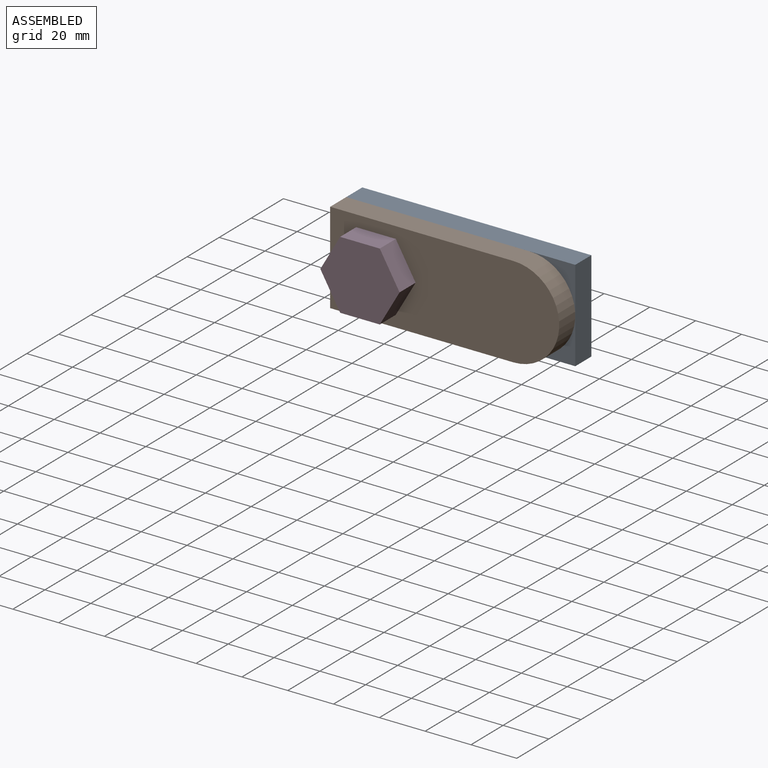
[diagram: assembled view]
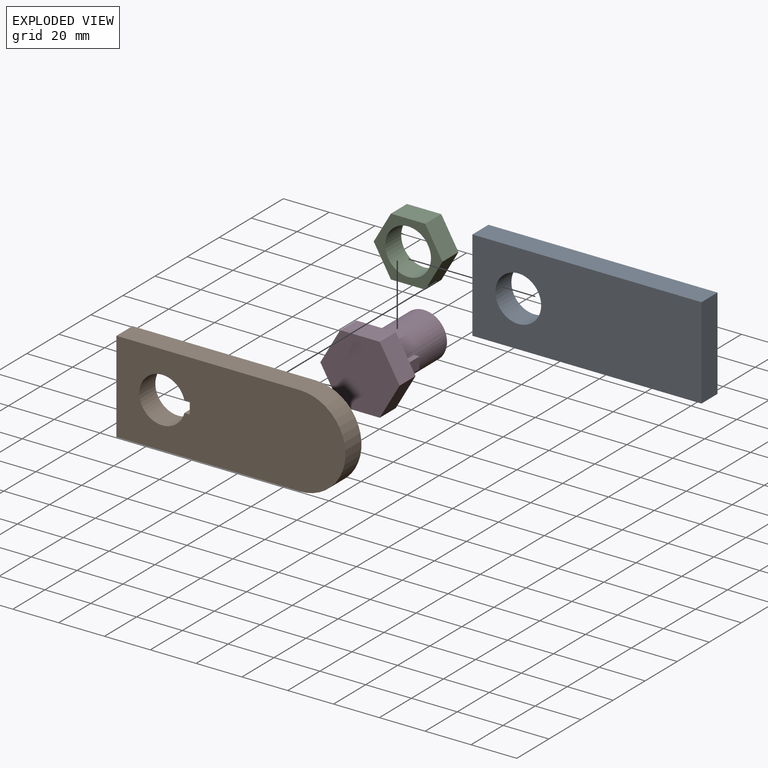
[diagram: exploded view]
GUIDED TOUR — MATED ASSEMBLY (Onshape document ece6e4e9f2e5bcd95f01d395, AutoMate assembly ece6e4e9f2e5bcd95f01d395_c71dc34602452f2787e5e2ba_51448a949453e09c9111e86c_default)

This assembly has 4 components, labeled P0..P3 below (a component is one placed occurrence of a part; the same part can appear more than once), held together by 3 mates. A mate is a constraint between two components; its type names the relative motion it leaves free:
  FASTENED — locks the two components together rigidly (no relative motion),
  REVOLUTE — leaves rotation about the listed axis free (a hinge).
Axis/direction vectors are unit vectors and 'through' points are millimeter coordinates, both in the assembly's world frame.

MATES
  1. FASTENED "Fastened 1": P3 <-> P1, direction (1.000, 0.000, 0.000) through (-59.93, -40.11, -23.84) mm
  2. REVOLUTE "Revolute 2": P0 <-> P1, axis (0.000, -1.000, 0.000) through (-71.93, -35.11, -23.84) mm
  3. REVOLUTE "Revolute 1": P0 <-> P2, axis (0.000, 1.000, 0.000) through (-71.93, -25.11, -23.84) mm

ASSEMBLY ORDER
  1. P2 — the base component [order verified]
  2. P3 [order verified]
  3. P1 [order verified]
  4. P0 [order verified]
Order-tag legend:
  [order verified] — this step's position reverses a verified removal order: the component was checked to insert without passing through the ones already placed.

Of the 4 components, 4 carry the full construction recipe — the FeatureScript program that regenerates the part's solid from scratch; the rest are supplied as boundary geometry only.
Each toured component is shown spotlighted twice — in the assembled view, then in the exploded view, where a leader line traces a displaced component back to its assembled socket (saturated green if recipe-attached, orange if geometry-only; every other component desaturated gray) — followed by its recipe or geometry summary and the mates that hold it.
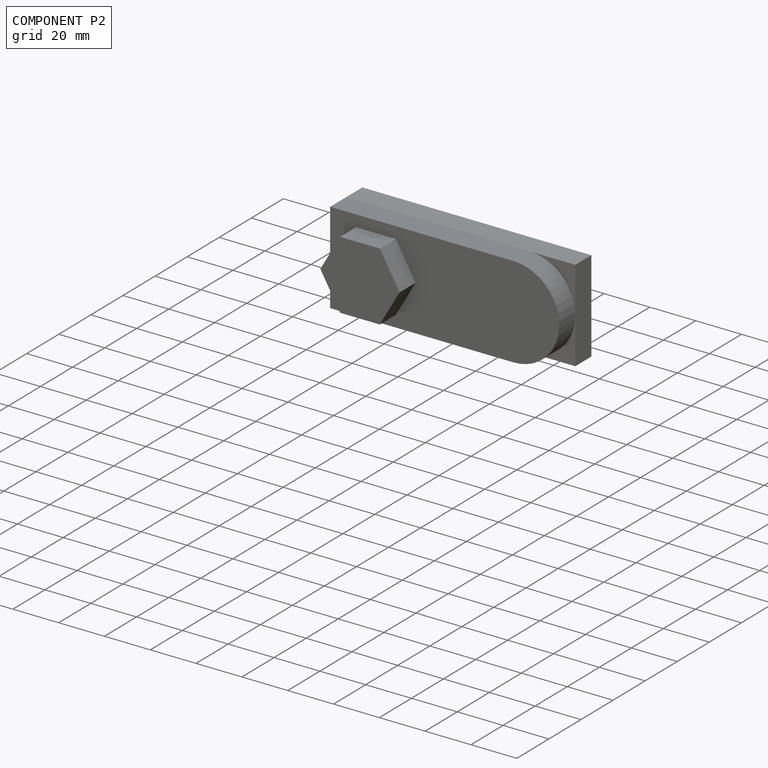
[diagram: component P2 — assembled]
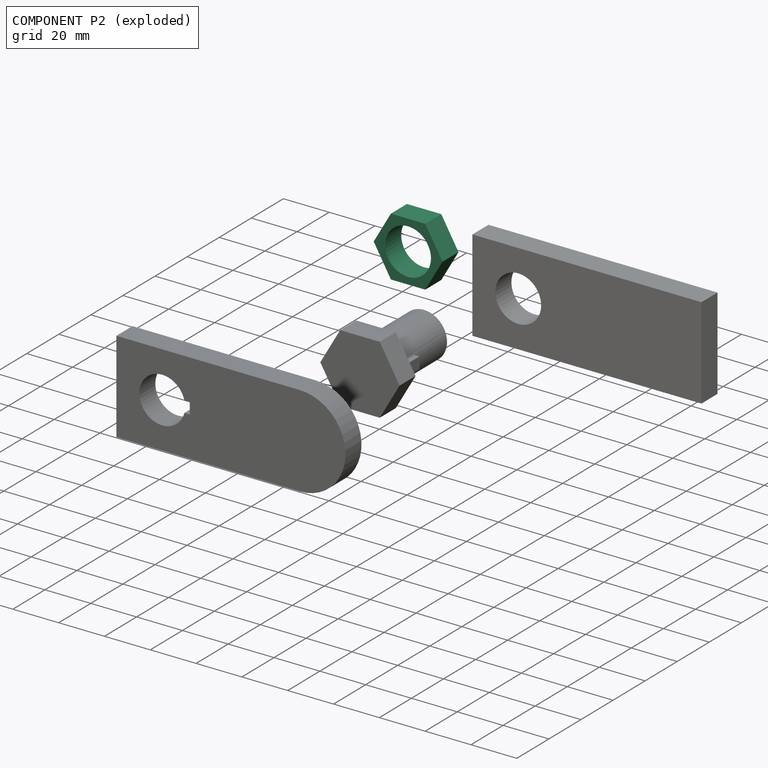
[diagram: component P2 — exploded]
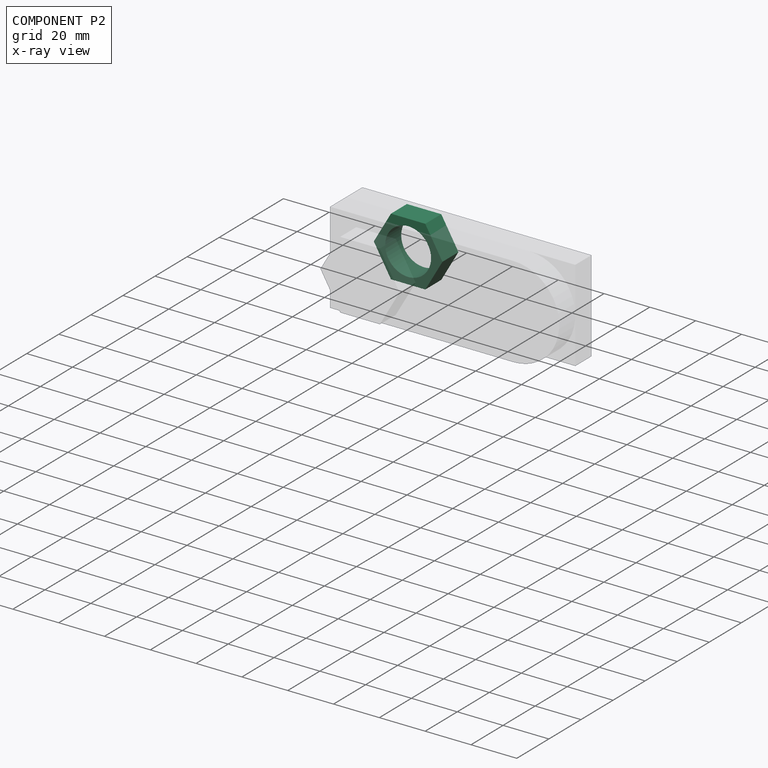
[diagram: component P2 — x-ray view]
COMPONENT P2 — recipe-attached (CADFS 00669568, mesh-verified: the recipe's output STEP matches this component's geometry to below the mesh-comparison resolution (tessellation chordal tolerance ~0.0614 mm)).
Held by: REVOLUTE mate "Revolute 1" to P0.
Construction recipe (FeatureScript — the CAD program that rebuilds this solid; sketch coordinates are in the units given by the * unit suffixes, e.g. mm):

FeatureScript 1511;
import(path : "onshape/std/geometry.fs", version : "1511.0");
import(path : "onshape/std/common.fs", version : "1511.0");
const mm = millimeter;
const VERTEX = EntityType.VERTEX;
const EDGE = EntityType.EDGE;
const FACE = EntityType.FACE;
const BODY = EntityType.BODY;
function v(x, y){return vector(x, y);}
function OD(order){return orderDisambiguation(order);}
function OSD(set){return originalSetDisambiguation(set);}
function TD(topology){return topologyDisambiguation(topology);}
function TDD(query){return trueDependencyDisambiguation(query);}
function sQuery(a, b, c) {return sketchEntityQuery(a, b, c);}

annotation { "Feature Type Name" : "Feature", "Feature Type Description" : "" }
export const myFeature = defineFeature(function(context is Context, id is Id, definition is map)
    precondition{}
    {
        {
            var Q0;
            Q0=qCreatedBy(makeId("Front.planeOp"),FACE);
            var sketch = newSketch(context, id + "F0", { "sketchPlane" : qUnion([Q0])});
            skCircle(sketch, "E0.cCircle", {"center": v(-147.43, 0) * mm, "radius": 13 * mm, "construction": true});
            skLineSegment(sketch, "E0.0", {"start": v(-139.93, -13) * mm, "end": v(-154.93, -13) * mm});
            skLineSegment(sketch, "E0.1", {"start": v(-154.93, -13) * mm, "end": v(-162.43, 0) * mm});
            skLineSegment(sketch, "E0.2", {"start": v(-162.43, 0) * mm, "end": v(-154.93, 13) * mm});
            skLineSegment(sketch, "E0.3", {"start": v(-154.93, 13) * mm, "end": v(-139.93, 13) * mm});
            skLineSegment(sketch, "E0.4", {"start": v(-139.93, 13) * mm, "end": v(-132.43, 0) * mm});
            skLineSegment(sketch, "E0.5", {"start": v(-132.43, 0) * mm, "end": v(-139.93, -13) * mm});
            skPoint(sketch, "E0.0.midPoint", {"position": v(-147.43, -13) * mm});
            skCircle(sketch, "E1", {"center": v(-147.43, 0) * mm, "radius": 10 * mm});
            skCircle(sketch, "E2.cCircle", {"center": v(-86.74, 3.46) * mm, "radius": 13 * mm, "construction": true});
            skLineSegment(sketch, "E2.0", {"start": v(-79.24, -9.53) * mm, "end": v(-94.24, -9.53) * mm});
            skLineSegment(sketch, "E2.1", {"start": v(-94.24, -9.53) * mm, "end": v(-101.74, 3.46) * mm});
            skLineSegment(sketch, "E2.2", {"start": v(-101.74, 3.46) * mm, "end": v(-94.24, 16.45) * mm});
            skLineSegment(sketch, "E2.3", {"start": v(-94.24, 16.45) * mm, "end": v(-79.24, 16.45) * mm});
            skLineSegment(sketch, "E2.4", {"start": v(-79.24, 16.45) * mm, "end": v(-71.74, 3.46) * mm});
            skLineSegment(sketch, "E2.5", {"start": v(-71.74, 3.46) * mm, "end": v(-79.24, -9.53) * mm});
            skPoint(sketch, "E2.0.midPoint", {"position": v(-86.74, -9.53) * mm});
            skCircle(sketch, "E3", {"center": v(-86.74, 3.46) * mm, "radius": 10 * mm});
            skSolve(sketch);
        }
        {
            var Q0;
            Q0=makeQuery(id+"F0.imprint","IMPRINT",FACE,{"disambiguationData":[TD([[makeQuery(id+"F0.imprint","IMPRINT",EDGE,{"derivedFrom":sQuery(id+"F0.wireOp",EDGE,"E0.0")}),-1.0]])]});
            extrude(context, id + "F1", {"entities" : qUnion([Q0]), "depth" : 10 * mm, "offsetDistance" : 25 * mm});
        }
    });
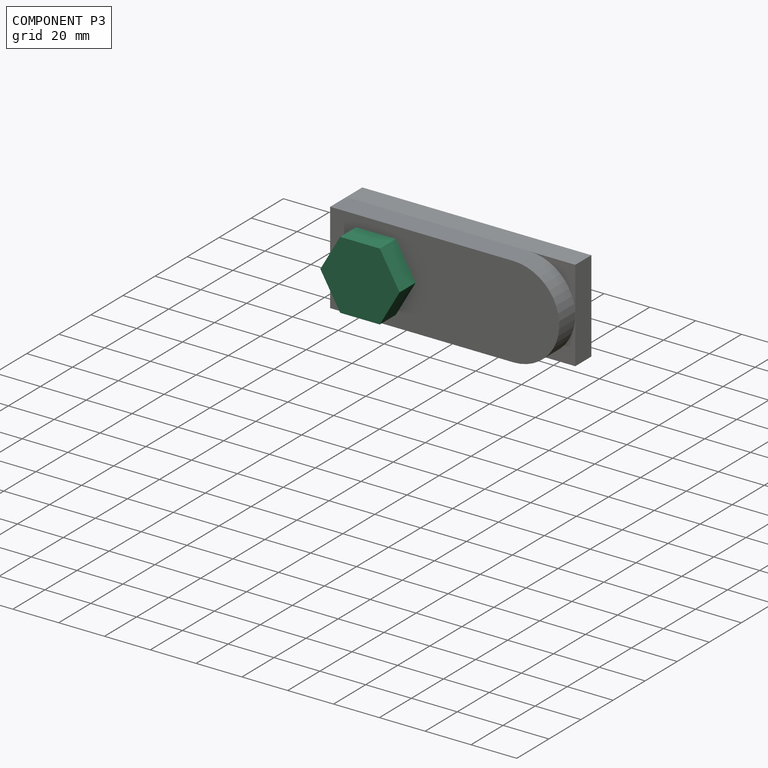
[diagram: component P3 — assembled]
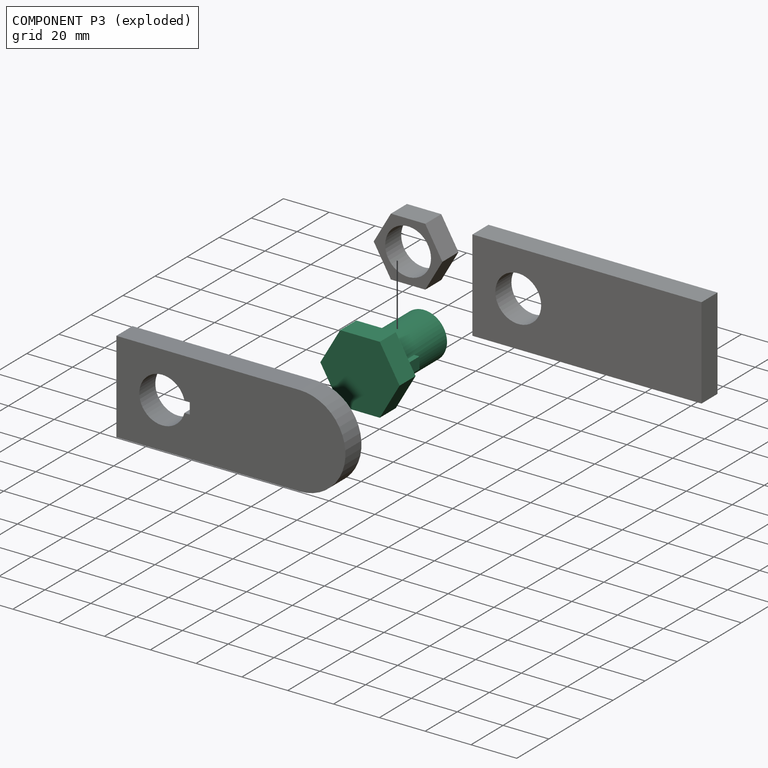
[diagram: component P3 — exploded]
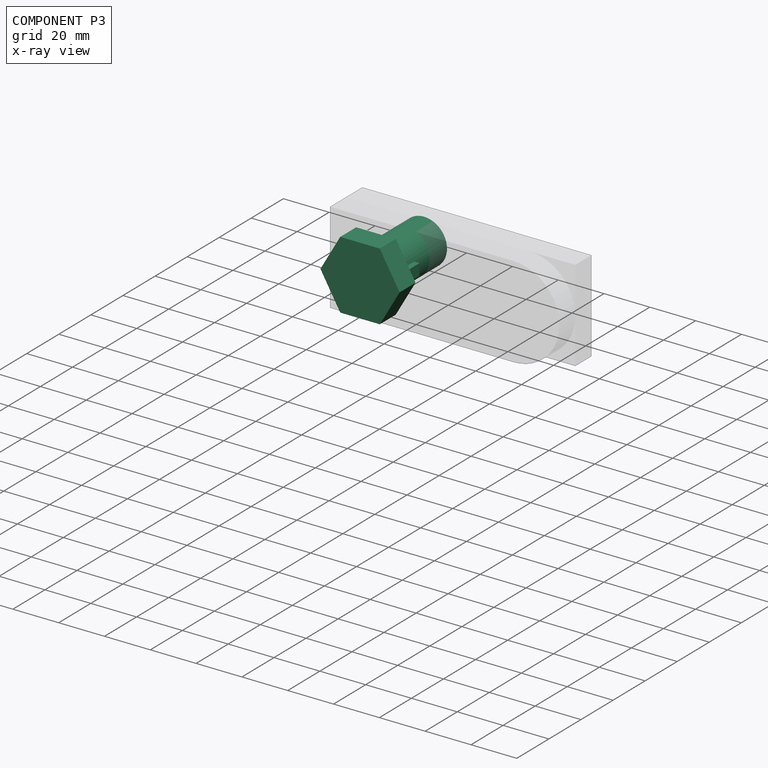
[diagram: component P3 — x-ray view]
COMPONENT P3 — recipe-attached (CADFS 00669569, mesh-verified: the recipe's output STEP matches this component's geometry to below the mesh-comparison resolution (tessellation chordal tolerance ~0.0912 mm)).
Held by: FASTENED mate "Fastened 1" to P1.
Construction recipe (FeatureScript — the CAD program that rebuilds this solid; sketch coordinates are in the units given by the * unit suffixes, e.g. mm):

FeatureScript 1511;
import(path : "onshape/std/geometry.fs", version : "1511.0");
import(path : "onshape/std/common.fs", version : "1511.0");
const mm = millimeter;
const VERTEX = EntityType.VERTEX;
const EDGE = EntityType.EDGE;
const FACE = EntityType.FACE;
const BODY = EntityType.BODY;
function v(x, y){return vector(x, y);}
function OD(order){return orderDisambiguation(order);}
function OSD(set){return originalSetDisambiguation(set);}
function TD(topology){return topologyDisambiguation(topology);}
function TDD(query){return trueDependencyDisambiguation(query);}
function sQuery(a, b, c) {return sketchEntityQuery(a, b, c);}

annotation { "Feature Type Name" : "Feature", "Feature Type Description" : "" }
export const myFeature = defineFeature(function(context is Context, id is Id, definition is map)
    precondition{}
    {
        {
            var Q0;
            Q0=qCreatedBy(makeId("Front.planeOp"),FACE);
            var sketch = newSketch(context, id + "F0", { "sketchPlane" : qUnion([Q0])});
            skCircle(sketch, "E0.cCircle", {"center": v(-165.47, 0) * mm, "radius": 14.98 * mm, "construction": true});
            skLineSegment(sketch, "E0.0", {"start": v(-156.82, -14.98) * mm, "end": v(-174.11, -14.98) * mm});
            skLineSegment(sketch, "E0.1", {"start": v(-174.11, -14.98) * mm, "end": v(-182.76, 0) * mm});
            skLineSegment(sketch, "E0.2", {"start": v(-182.76, 0) * mm, "end": v(-174.11, 14.98) * mm});
            skLineSegment(sketch, "E0.3", {"start": v(-174.11, 14.98) * mm, "end": v(-156.82, 14.98) * mm});
            skLineSegment(sketch, "E0.4", {"start": v(-156.82, 14.98) * mm, "end": v(-148.17, 0) * mm});
            skLineSegment(sketch, "E0.5", {"start": v(-148.17, 0) * mm, "end": v(-156.82, -14.98) * mm});
            skPoint(sketch, "E0.0.midPoint", {"position": v(-165.47, -14.98) * mm});
            skCircle(sketch, "E1", {"center": v(-165.47, 0) * mm, "radius": 10 * mm});
            skLineSegment(sketch, "E2.bottom", {"start": v(-153.47, -2.5) * mm, "end": v(-155.78, -2.5) * mm});
            skLineSegment(sketch, "E2.top", {"start": v(-153.47, 2.5) * mm, "end": v(-155.78, 2.5) * mm});
            skLineSegment(sketch, "E2.left", {"start": v(-153.47, -2.5) * mm, "end": v(-153.47, 2.5) * mm});
            skPoint(sketch, "E2.middle", {"position": v(-155.47, 0) * mm});
            skPoint(sketch, "E3.orphan", {"position": v(-157.47, 2.5) * mm});
            skPoint(sketch, "E4.orphan", {"position": v(-157.47, -2.5) * mm});
            skSolve(sketch);
        }
        {
            var Q0;
            {var subQ0=sQuery(id+"F0.wireOp",EDGE,"E1");var subQ1=makeQuery(id+"F0.imprint","INTERSECT",VERTEX,{"derivedFrom":[subQ0,sQuery(id+"F0.wireOp",EDGE,"E2.bottom")]});Q0=makeQuery(id+"F0.imprint","IMPRINT",FACE,{"disambiguationData":[TD([[makeQuery(id+"F0.imprint","IMPRINT",EDGE,{"disambiguationData":[TD([[subQ1,1.0]])],"derivedFrom":subQ0}),1.0]])]});}
            extrude(context, id + "F1", {"entities" : qUnion([Q0]), "depth" : 30 * mm, "offsetDistance" : 25 * mm});
        }
        {
            var Q0;
            {var subQ0=sQuery(id+"F0.wireOp",EDGE,"E2.bottom");Q0=makeQuery(id+"F0.imprint","IMPRINT",FACE,{"disambiguationData":[TD([[makeQuery(id+"F0.imprint","IMPRINT",EDGE,{"derivedFrom":subQ0}),-1.0]])]});}
            extrude(context, id + "F2", {"entities" : qUnion([Q0]), "operationType" : NewBodyOperationType.ADD, "depth" : 10 * mm, "offsetDistance" : 25 * mm});
        }
        {
            var Q0;
            Q0=makeQuery(id+"F0.imprint","IMPRINT",FACE,{"disambiguationData":[TD([[makeQuery(id+"F0.imprint","IMPRINT",EDGE,{"derivedFrom":sQuery(id+"F0.wireOp",EDGE,"E0.0")}),-1.0]])]});
            var Q1;
            {var subQ0=sQuery(id+"F0.wireOp",EDGE,"E1");var subQ1=makeQuery(id+"F0.imprint","INTERSECT",VERTEX,{"derivedFrom":[subQ0,sQuery(id+"F0.wireOp",EDGE,"E2.bottom")]});Q1=makeQuery(id+"F0.imprint","IMPRINT",FACE,{"disambiguationData":[TD([[makeQuery(id+"F0.imprint","IMPRINT",EDGE,{"disambiguationData":[TD([[subQ1,1.0]])],"derivedFrom":subQ0}),1.0]])]});}
            var Q2;
            {var subQ0=sQuery(id+"F0.wireOp",EDGE,"E2.bottom");Q2=makeQuery(id+"F0.imprint","IMPRINT",FACE,{"disambiguationData":[TD([[makeQuery(id+"F0.imprint","IMPRINT",EDGE,{"derivedFrom":subQ0}),-1.0]])]});}
            extrude(context, id + "F3", {"entities" : qUnion([Q0, Q1, Q2]), "operationType" : NewBodyOperationType.ADD, "oppositeDirection" : true, "depth" : 10 * mm, "offsetDistance" : 25 * mm});
        }
    });
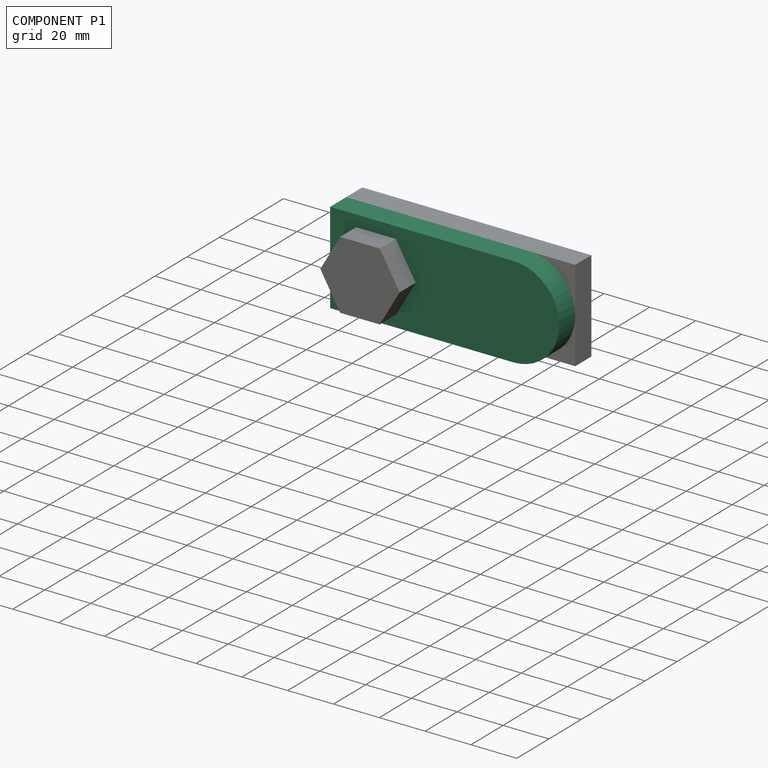
[diagram: component P1 — assembled]
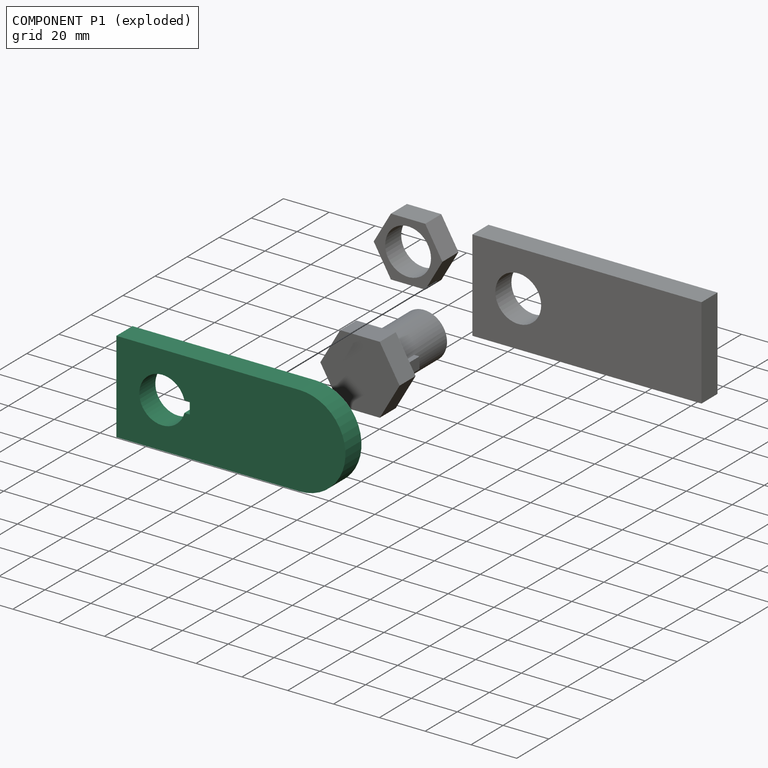
[diagram: component P1 — exploded]
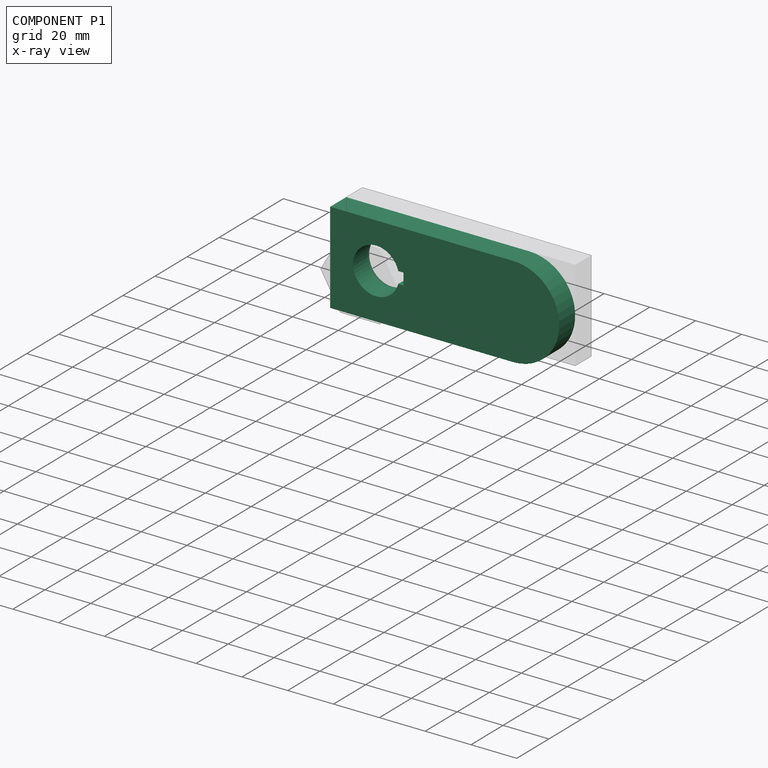
[diagram: component P1 — x-ray view]
COMPONENT P1 — recipe-attached (CADFS 00669570, mesh-verified: the recipe's output STEP matches this component's geometry to below the mesh-comparison resolution (tessellation chordal tolerance ~0.162 mm)).
Held by: FASTENED mate "Fastened 1" to P3; REVOLUTE mate "Revolute 2" to P0.
Construction recipe (FeatureScript — the CAD program that rebuilds this solid; sketch coordinates are in the units given by the * unit suffixes, e.g. mm):

FeatureScript 1511;
import(path : "onshape/std/geometry.fs", version : "1511.0");
import(path : "onshape/std/common.fs", version : "1511.0");
const mm = millimeter;
const VERTEX = EntityType.VERTEX;
const EDGE = EntityType.EDGE;
const FACE = EntityType.FACE;
const BODY = EntityType.BODY;
function v(x, y){return vector(x, y);}
function OD(order){return orderDisambiguation(order);}
function OSD(set){return originalSetDisambiguation(set);}
function TD(topology){return topologyDisambiguation(topology);}
function TDD(query){return trueDependencyDisambiguation(query);}
function sQuery(a, b, c) {return sketchEntityQuery(a, b, c);}

annotation { "Feature Type Name" : "Feature", "Feature Type Description" : "" }
export const myFeature = defineFeature(function(context is Context, id is Id, definition is map)
    precondition{}
    {
        {
            var Q0;
            Q0=qCreatedBy(makeId("Front.planeOp"),FACE);
            var sketch = newSketch(context, id + "F0", { "sketchPlane" : qUnion([Q0])});
            skLineSegment(sketch, "E0", {"start": v(-20, 0) * mm, "end": v(-100, 0) * mm});
            skLineSegment(sketch, "E1", {"start": v(-100, 40) * mm, "end": v(-20, 40) * mm});
            skLineSegment(sketch, "E2", {"start": v(-100, 40) * mm, "end": v(-100, 0) * mm});
            skArc(sketch, "E3", {"start": v(-70.32, 22.5) * mm, "mid": v(-90, 20) * mm, "end": v(-70.32, 17.5) * mm});
            skArc(sketch, "E4", {"start": v(-20, 0) * mm, "mid": v(0, 20) * mm, "end": v(-20, 40) * mm});
            skLineSegment(sketch, "E5", {"start": v(-68, 20) * mm, "end": v(-68, 17.5) * mm});
            skLineSegment(sketch, "E6", {"start": v(-68, 20) * mm, "end": v(-68, 22.5) * mm});
            skLineSegment(sketch, "E7", {"start": v(-68, 22.5) * mm, "end": v(-70.32, 22.5) * mm});
            skLineSegment(sketch, "E8", {"start": v(-68, 17.5) * mm, "end": v(-70.32, 17.5) * mm});
            skSolve(sketch);
        }
        {
            var Q0;
            Q0=makeQuery(id+"F0.imprint","IMPRINT",FACE,{"disambiguationData":[TD([[makeQuery(id+"F0.imprint","IMPRINT",EDGE,{"derivedFrom":sQuery(id+"F0.wireOp",EDGE,"E0")}),-1.0]])]});
            extrude(context, id + "F1", {"entities" : qUnion([Q0]), "depth" : 10 * mm, "offsetDistance" : 25 * mm});
        }
    });
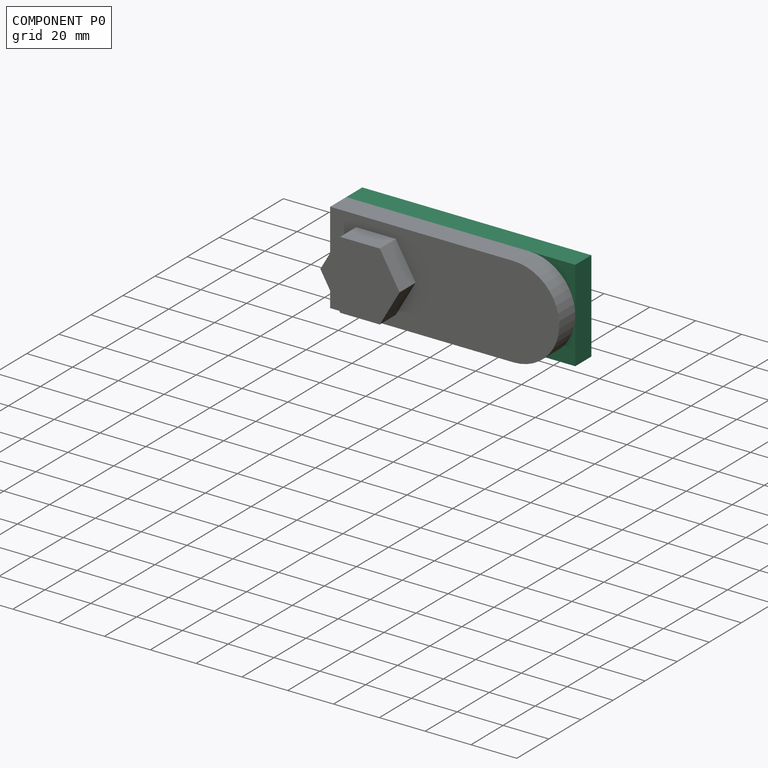
[diagram: component P0 — assembled]
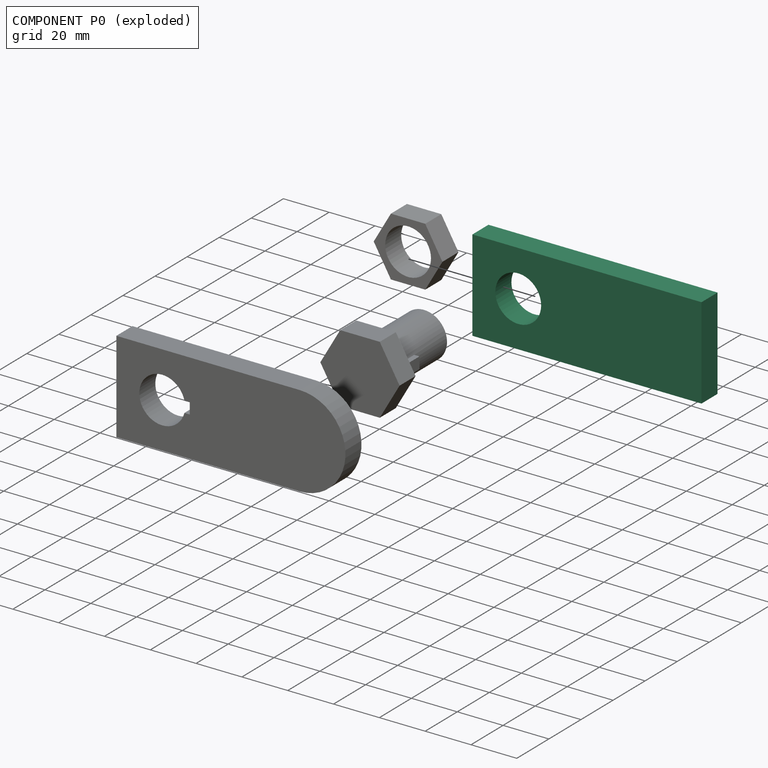
[diagram: component P0 — exploded]
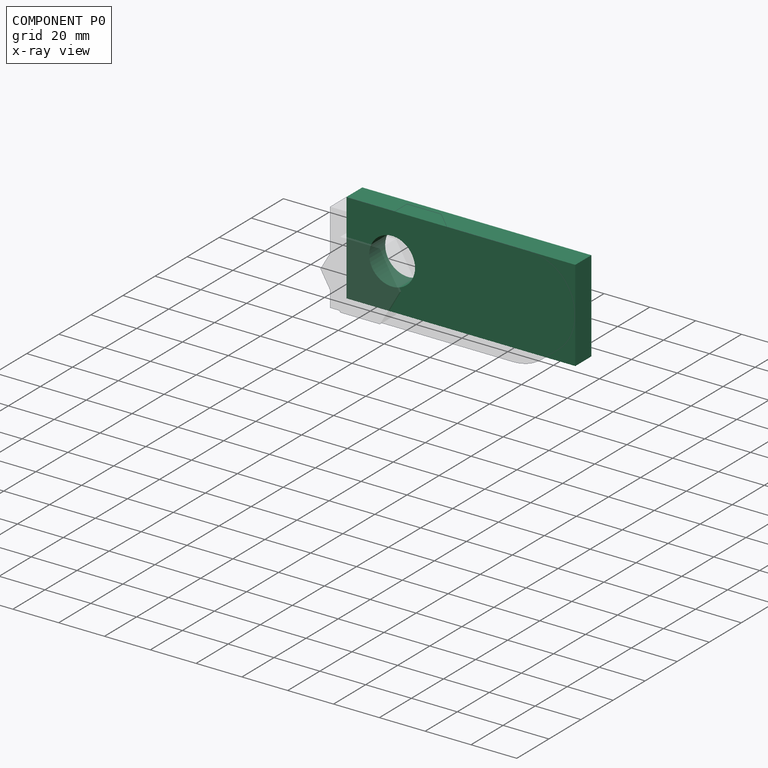
[diagram: component P0 — x-ray view]
COMPONENT P0 — recipe-attached (CADFS 00669567, mesh-verified: the recipe's output STEP matches this component's geometry to below the mesh-comparison resolution (tessellation chordal tolerance ~0.162 mm)).
Held by: REVOLUTE mate "Revolute 2" to P1; REVOLUTE mate "Revolute 1" to P2.
Construction recipe (FeatureScript — the CAD program that rebuilds this solid; sketch coordinates are in the units given by the * unit suffixes, e.g. mm):

FeatureScript 1511;
import(path : "onshape/std/geometry.fs", version : "1511.0");
import(path : "onshape/std/common.fs", version : "1511.0");
const mm = millimeter;
const VERTEX = EntityType.VERTEX;
const EDGE = EntityType.EDGE;
const FACE = EntityType.FACE;
const BODY = EntityType.BODY;
function v(x, y){return vector(x, y);}
function OD(order){return orderDisambiguation(order);}
function OSD(set){return originalSetDisambiguation(set);}
function TD(topology){return topologyDisambiguation(topology);}
function TDD(query){return trueDependencyDisambiguation(query);}
function sQuery(a, b, c) {return sketchEntityQuery(a, b, c);}

annotation { "Feature Type Name" : "Feature", "Feature Type Description" : "" }
export const myFeature = defineFeature(function(context is Context, id is Id, definition is map)
    precondition{}
    {
        {
            var Q0;
            Q0=qCreatedBy(makeId("Front.planeOp"),FACE);
            var sketch = newSketch(context, id + "F0", { "sketchPlane" : qUnion([Q0])});
            skLineSegment(sketch, "E0", {"start": v(0, 0) * mm, "end": v(-100, 0) * mm});
            skLineSegment(sketch, "E1", {"start": v(-100, 40) * mm, "end": v(-100, 0) * mm});
            skLineSegment(sketch, "E2", {"start": v(0, 40) * mm, "end": v(0, 0) * mm});
            skLineSegment(sketch, "E3", {"start": v(0, 40) * mm, "end": v(-100, 40) * mm});
            skCircle(sketch, "E4", {"center": v(-80, 20) * mm, "radius": 10 * mm});
            skSolve(sketch);
        }
        {
            var Q0;
            Q0=makeQuery(id+"F0.imprint","IMPRINT",FACE,{"disambiguationData":[TD([[makeQuery(id+"F0.imprint","IMPRINT",EDGE,{"derivedFrom":sQuery(id+"F0.wireOp",EDGE,"E0")}),-1.0]])]});
            extrude(context, id + "F1", {"entities" : qUnion([Q0]), "depth" : 10 * mm, "offsetDistance" : 25 * mm});
        }
    });
PROVENANCE & LICENSES
Assembly (occurrences, transforms, mates, per-part STEP geometry): AutoMate dataset, Zenodo record 7776208, CC0.
Construction recipes: CADFS (HuggingFace VladPyatov/CADFS, CC-BY-4.0, layered over the ABC dataset), FeatureScript reconstruction programs keyed by ABC model id.
Join: ABC meta listings map ABC model id -> Onshape documentId; within a shared document, parts are matched by geometric signature (bounding-box dims + volume at 0.1% relative tolerance, exact B-rep face/solid counts).
Verification: 4 of this assembly's 4 components carry a recipe attachment, and every attachment is mesh-verified: the CADFS STEP and the AutoMate member STEP were compared as meshes in their shared local frame (symmetric sampled-point-to-mesh distance); worst across the 4 attachments: below the mesh-comparison resolution (tessellation chordal tolerance ~0.162 mm) on a 108 mm part.
Renders: orthographic iso camera (az 35 / el 25); the floor grid conveys scale (grid pitch printed in each image; no ruler). In the exploded view each component is displaced by its stored offset vector: the offsets alone carry the explosion direction (mate normal/axis signs are not orientation cues and do not encode it), and separation distances are assigned per mate-chain, not proportionally to assembly-order depth.
